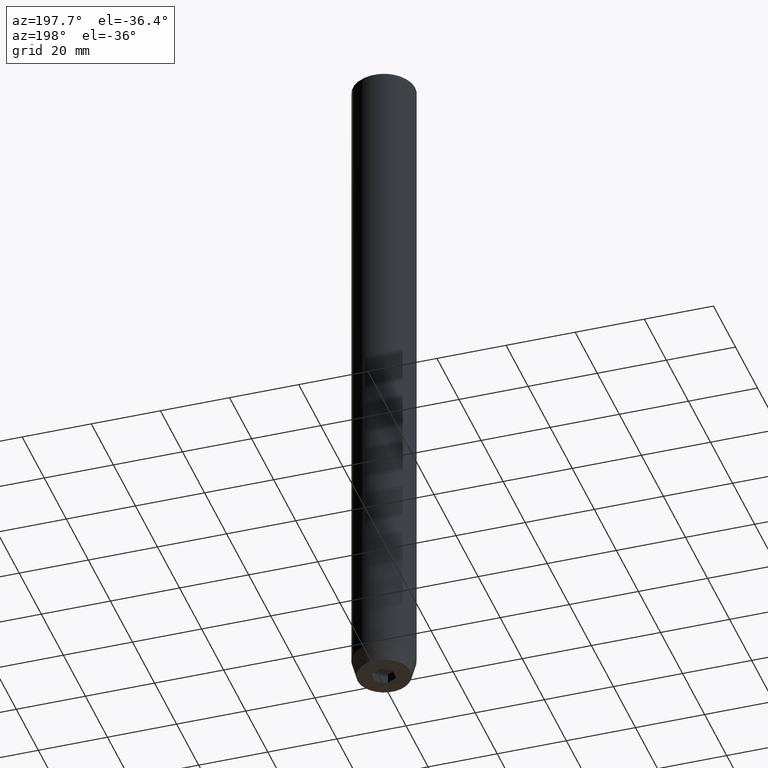
[diagram: clean part render]
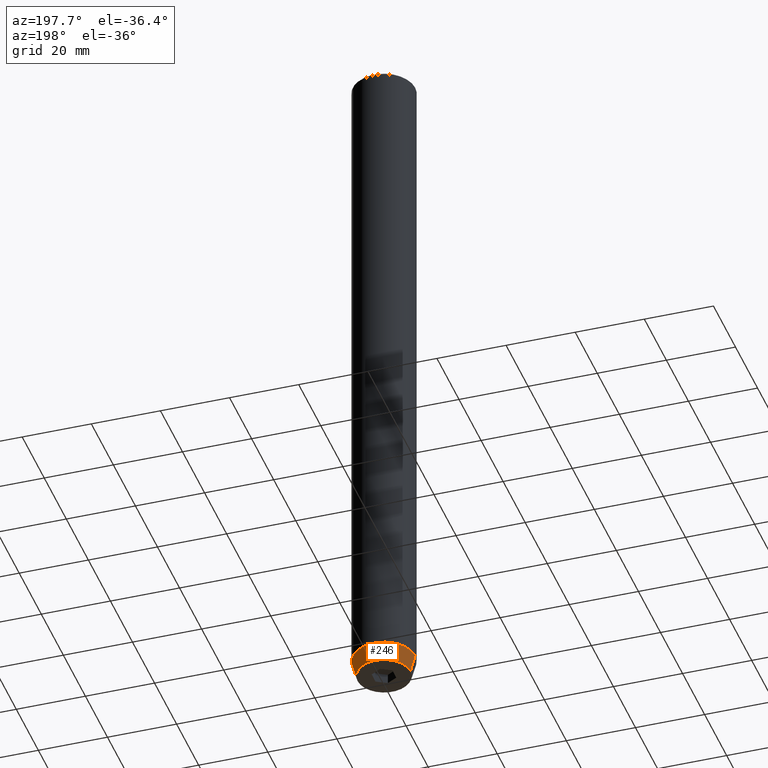
[diagram: same view with one face highlighted and labeled with its STEP entity id]
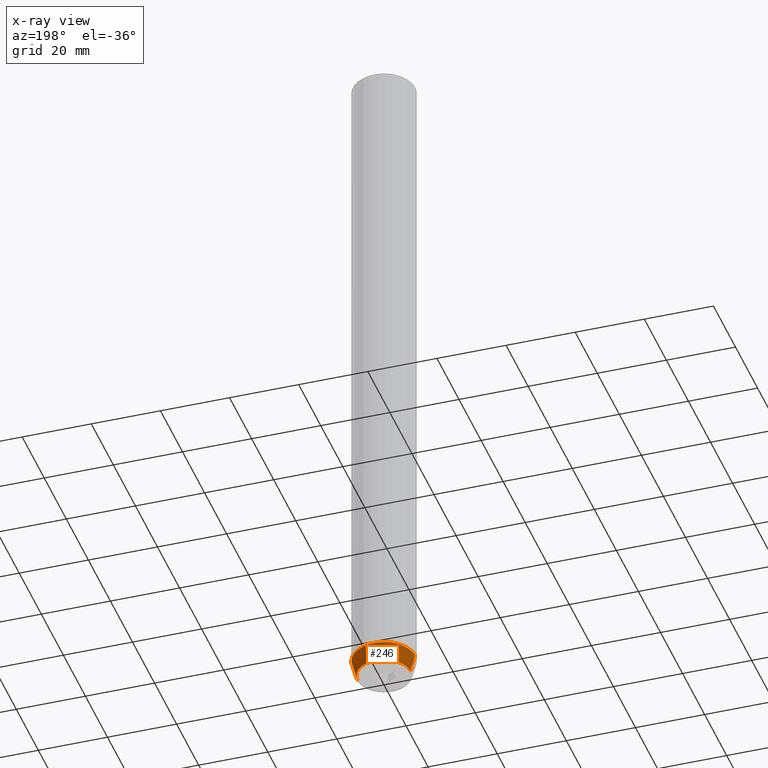
[diagram: x-ray of the same camera — body ghosted, the highlighted face saturated]
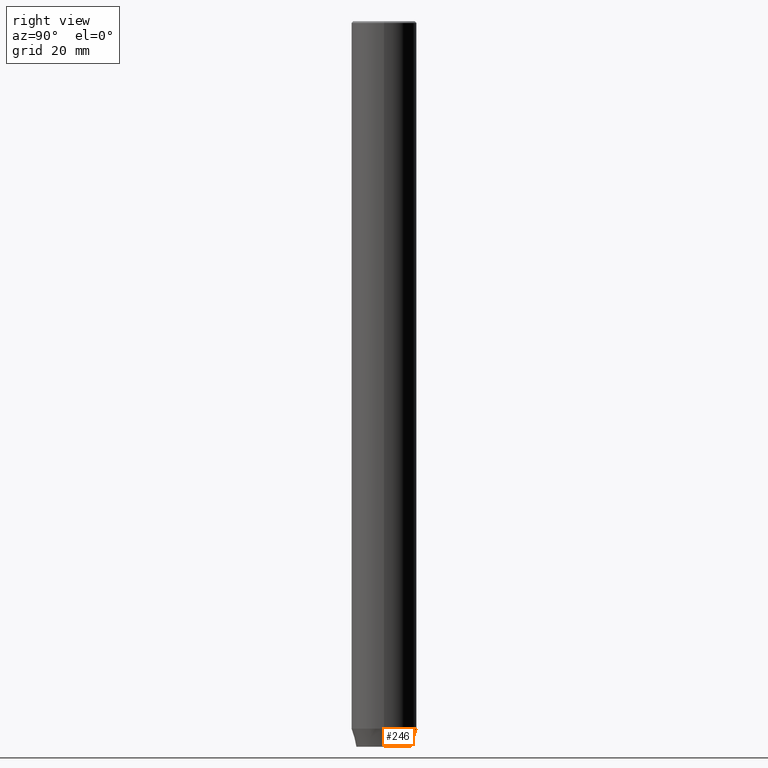
[diagram: same view with one face highlighted and labeled with its STEP entity id]
A machine part, auxiliary view. The second image highlights one B-rep face of the part: STEP entity #246.
The next image is the same camera in x-ray: the body ghosted, the highlighted face saturated — about 0% of this face is hidden behind the body in this view.
A second angle (right view) of the same face is appended — the face is thin or edge-on in the first view.
In plain terms, the highlighted conical surface has half-angle 15 deg.
Its self-contained STEP definition (entity closure, byte-faithful):
#7 = EDGE_CURVE ( 'NONE', #191, #236, #287, .T. ) ;
#12 = AXIS2_PLACEMENT_3D ( 'NONE', #21, #372, #68 ) ;
#21 = CARTESIAN_POINT ( 'NONE',  ( 0.000000000000000000, 0.000000000000000000, -200.0000000000000000 ) ) ;
#30 = VERTEX_POINT ( 'NONE', #158 ) ;
#68 = DIRECTION ( 'NONE',  ( 1.000000000000000000, 0.000000000000000000, 0.000000000000000000 ) ) ;
#81 = AXIS2_PLACEMENT_3D ( 'NONE', #82, #429, #259 ) ;
#82 = CARTESIAN_POINT ( 'NONE',  ( 0.000000000000000000, 0.000000000000000000, -195.0000000000000000 ) ) ;
#86 = EDGE_CURVE ( 'NONE', #30, #191, #131, .T. ) ;
#87 = FACE_OUTER_BOUND ( 'NONE', #238, .T. ) ;
#109 = ORIENTED_EDGE ( 'NONE', *, *, #212, .F. ) ;
#124 = DIRECTION ( 'NONE',  ( 1.000000000000000000, 0.000000000000000000, 0.000000000000000000 ) ) ;
#131 = CIRCLE ( 'NONE', #12, 7.660254037844380193 ) ;
#158 = CARTESIAN_POINT ( 'NONE',  ( 7.660254037844380193, 0.000000000000000000, -200.0000000000000000 ) ) ;
#160 = CARTESIAN_POINT ( 'NONE',  ( -9.000000000000000000, 1.102182119232617714E-15, -195.0000000000000000 ) ) ;
#162 = CIRCLE ( 'NONE', #317, 9.000000000000000000 ) ;
#191 = VERTEX_POINT ( 'NONE', #573 ) ;
#212 = EDGE_CURVE ( 'NONE', #575, #236, #162, .T. ) ;
#234 = ORIENTED_EDGE ( 'NONE', *, *, #7, .T. ) ;
#236 = VERTEX_POINT ( 'NONE', #160 ) ;
#238 = EDGE_LOOP ( 'NONE', ( #416, #234, #109, #282 ) ) ;
#246 = ADVANCED_FACE ( 'NONE', ( #87 ), #308, .T. ) ;
#259 = DIRECTION ( 'NONE',  ( 1.000000000000000000, 0.000000000000000000, 0.000000000000000000 ) ) ;
#282 = ORIENTED_EDGE ( 'NONE', *, *, #481, .F. ) ;
#287 = LINE ( 'NONE', #566, #388 ) ;
#308 = CONICAL_SURFACE ( 'NONE', #81, 9.000000000000000000, 0.2617993877991502405 ) ;
#316 = LINE ( 'NONE', #495, #390 ) ;
#317 = AXIS2_PLACEMENT_3D ( 'NONE', #487, #489, #124 ) ;
#372 = DIRECTION ( 'NONE',  ( -0.000000000000000000, -0.000000000000000000, 1.000000000000000000 ) ) ;
#374 = CARTESIAN_POINT ( 'NONE',  ( 9.000000000000000000, 0.000000000000000000, -195.0000000000000000 ) ) ;
#388 = VECTOR ( 'NONE', #521, 1000.000000000000114 ) ;
#390 = VECTOR ( 'NONE', #500, 1000.000000000000114 ) ;
#416 = ORIENTED_EDGE ( 'NONE', *, *, #86, .T. ) ;
#429 = DIRECTION ( 'NONE',  ( -0.000000000000000000, -0.000000000000000000, 1.000000000000000000 ) ) ;
#481 = EDGE_CURVE ( 'NONE', #30, #575, #316, .T. ) ;
#487 = CARTESIAN_POINT ( 'NONE',  ( 0.000000000000000000, 0.000000000000000000, -195.0000000000000000 ) ) ;
#489 = DIRECTION ( 'NONE',  ( -0.000000000000000000, -0.000000000000000000, 1.000000000000000000 ) ) ;
#495 = CARTESIAN_POINT ( 'NONE',  ( 9.000000000000000000, 0.000000000000000000, -195.0000000000000000 ) ) ;
#500 = DIRECTION ( 'NONE',  ( 0.2588190451025214611, 0.000000000000000000, 0.9659258262890679791 ) ) ;
#521 = DIRECTION ( 'NONE',  ( -0.2588190451025214611, 3.169619151431774186E-17, 0.9659258262890679791 ) ) ;
#566 = CARTESIAN_POINT ( 'NONE',  ( -9.000000000000000000, 1.102182119232617714E-15, -195.0000000000000000 ) ) ;
#573 = CARTESIAN_POINT ( 'NONE',  ( -7.660254037844380193, 1.020146339021394272E-15, -200.0000000000000000 ) ) ;
#575 = VERTEX_POINT ( 'NONE', #374 ) ;